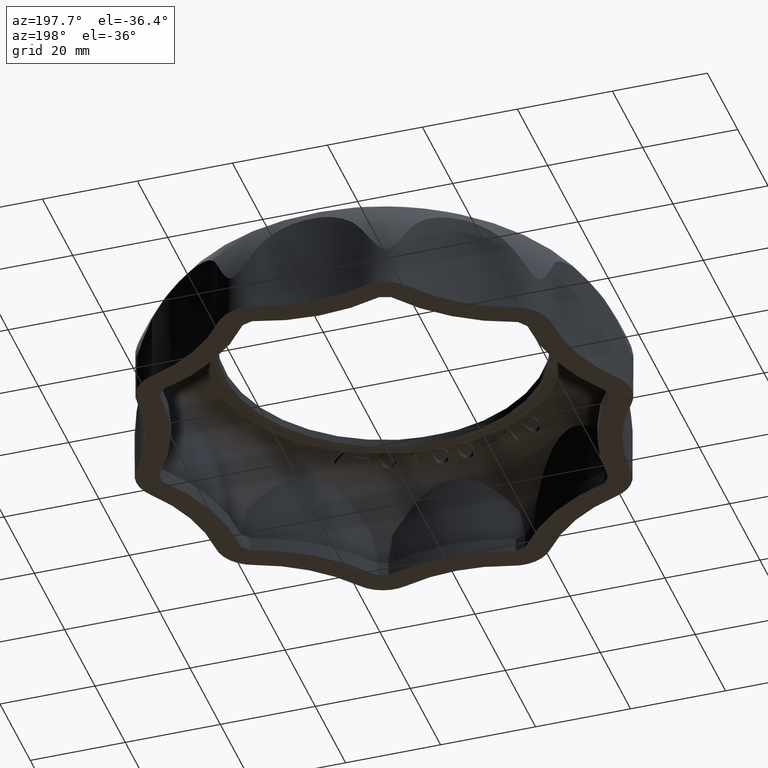
[diagram: clean part render]
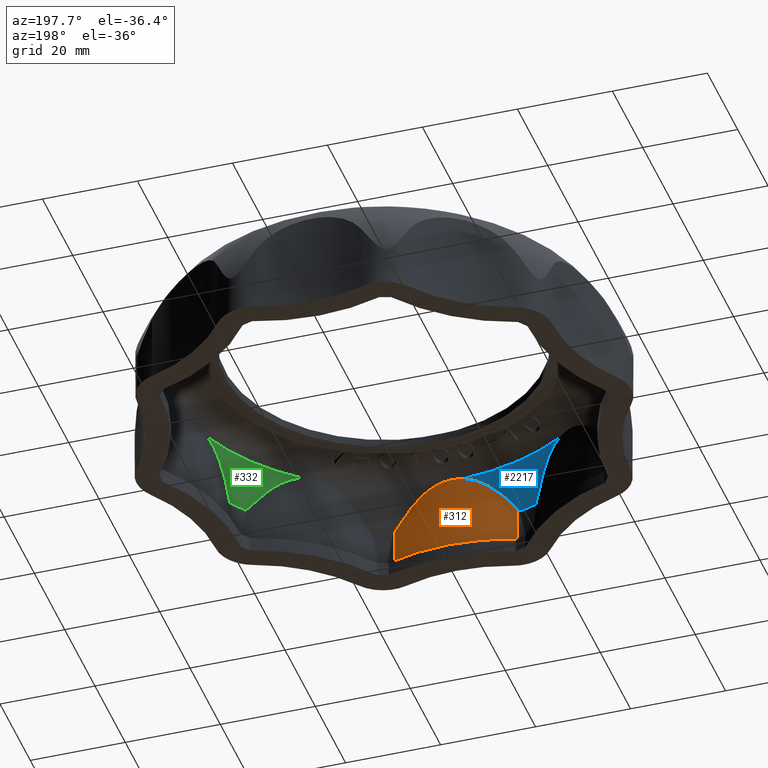
[diagram: same view with three faces highlighted in distinct colors, each labeled with its STEP entity id]
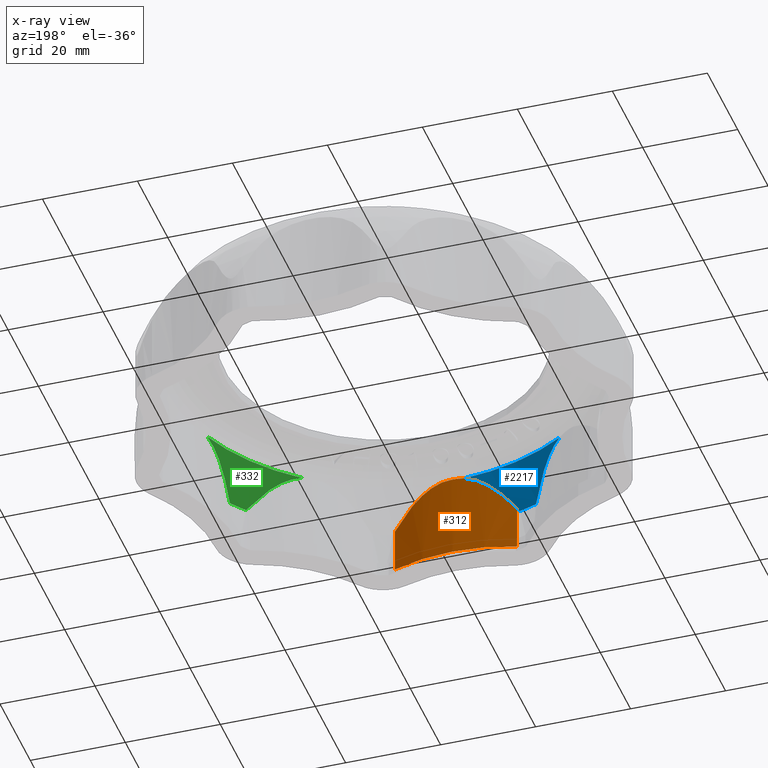
[diagram: x-ray of the same camera — body ghosted, the three highlighted faces saturated]
A machine part, auxiliary view with three faces highlighted in distinct colors.
The next image is the same camera in x-ray (body ghosted, the three faces saturated) — at least one of them is partly hidden behind the body in this view.
Their STEP definitions:

[orange] entity #312 — the highlighted cylindrical surface (partial cylindrical patch) has radius 38 mm, axis along (0, 0, -1).
#312 = ADVANCED_FACE( '', ( #2766 ), #2767, .T. );
#2766 = FACE_OUTER_BOUND( '', #7197, .T. );
#2767 = CYLINDRICAL_SURFACE( '', #7198, 38.0000000000000 );
#7197 = EDGE_LOOP( '', ( #16867, #16868, #16869, #16870, #16871, #16872 ) );
#7198 = AXIS2_PLACEMENT_3D( '', #16873, #16874, #16875 );
#16867 = ORIENTED_EDGE( '', *, *, #35007, .T. );
#16868 = ORIENTED_EDGE( '', *, *, #35008, .F. );
#16869 = ORIENTED_EDGE( '', *, *, #31560, .F. );
#16870 = ORIENTED_EDGE( '', *, *, #35009, .F. );
#16871 = ORIENTED_EDGE( '', *, *, #35010, .F. );
#16872 = ORIENTED_EDGE( '', *, *, #32480, .F. );
#16873 = CARTESIAN_POINT( '', ( 3.30260424563633E-006, -83.2682008088594, -142.941563697861 ) );
#16874 = DIRECTION( '', ( 0.000000000000000, 0.000000000000000, -1.00000000000000 ) );
#16875 = DIRECTION( '', ( 0.790354489271761, 0.612649803140402, 0.000000000000000 ) );
#31560 = EDGE_CURVE( '', #39047, #39049, #39050, .T. );
#32480 = EDGE_CURVE( '', #40885, #40887, #40888, .F. );
#35007 = EDGE_CURVE( '', #40885, #45714, #45715, .T. );
#35008 = EDGE_CURVE( '', #39049, #45714, #45716, .T. );
#35009 = EDGE_CURVE( '', #45717, #39047, #45718, .T. );
#35010 = EDGE_CURVE( '', #40887, #45717, #45719, .T. );
#39047 = VERTEX_POINT( '', #53690 );
#39049 = VERTEX_POINT( '', #53692 );
#39050 = B_SPLINE_CURVE_WITH_KNOTS( '', 3, ( #53693, #53694, #53695, #53696, #53697, #53698 ), .UNSPECIFIED., .F., .F., ( 4, 2, 4 ), ( 1.13321203803139E-006, 0.00234909977130705, 0.00469706633057607 ), .UNSPECIFIED. );
#40885 = VERTEX_POINT( '', #58372 );
#40887 = VERTEX_POINT( '', #58374 );
#40888 = CIRCLE( '', #58375, 38.0000000000000 );
#45714 = VERTEX_POINT( '', #70970 );
#45715 = LINE( '', #70971, #70972 );
#45716 = B_SPLINE_CURVE_WITH_KNOTS( '', 3, ( #70973, #70974, #70975, #70976, #70977, #70978, #70979, #70980, #70981, #70982, #70983, #70984 ), .UNSPECIFIED., .F., .F., ( 4, 2, 2, 2, 2, 4 ), ( 8.15083400922602E-007, 0.00344971060028494, 0.00517415835872695, 0.00689860611716896, 0.0103475016340530, 0.0137963971509370 ), .UNSPECIFIED. );
#45717 = VERTEX_POINT( '', #70985 );
#45718 = B_SPLINE_CURVE_WITH_KNOTS( '', 3, ( #70986, #70987, #70988, #70989, #70990, #70991, #70992, #70993, #70994, #70995, #70996, #70997 ), .UNSPECIFIED., .F., .F., ( 4, 2, 2, 2, 2, 4 ), ( 4.03809902751157E-007, 0.00345708544445287, 0.00691376707900300, 0.0103704487135531, 0.0120987895308282, 0.0138271303481033 ), .UNSPECIFIED. );
#45719 = LINE( '', #70998, #70999 );
#53690 = CARTESIAN_POINT( '', ( 2.34537602475781, -45.3406484650264, 20.7647700015187 ) );
#53692 = CARTESIAN_POINT( '', ( -2.34537242813354, -45.3406486510722, 20.7647700015187 ) );
#53693 = CARTESIAN_POINT( '', ( 2.34537602475780, -45.3406484650266, 20.7647700015187 ) );
#53694 = CARTESIAN_POINT( '', ( 1.56855960333164, -45.2926115121430, 20.9028625777991 ) );
#53695 = CARTESIAN_POINT( '', ( 0.788144006832646, -45.2682977745068, 20.9653730960380 ) );
#53696 = CARTESIAN_POINT( '', ( -0.778759156117320, -45.2681044218403, 20.9658905614924 ) );
#53697 = CARTESIAN_POINT( '', ( -1.56902643314827, -45.2926407267084, 20.9027789520270 ) );
#53698 = CARTESIAN_POINT( '', ( -2.34537242813358, -45.3406486510722, 20.7647700015190 ) );
#58372 = CARTESIAN_POINT( '', ( -12.8603992963025, -47.5105436569426, 2.99979606750061 ) );
#58374 = CARTESIAN_POINT( '', ( 12.8604023233813, -47.5105423700522, 2.99979606750060 ) );
#58375 = AXIS2_PLACEMENT_3D( '', #75570, #75571, #75572 );
#70970 = CARTESIAN_POINT( '', ( -12.8603992963027, -47.5105436569425, 12.4114893770233 ) );
#70971 = CARTESIAN_POINT( '', ( -12.8603992963025, -47.5105436569426, -142.941563697861 ) );
#70972 = VECTOR( '', #75817, 1000.00000000000 );
#70973 = CARTESIAN_POINT( '', ( -2.34537242813352, -45.3406486510723, 20.7647700015187 ) );
#70974 = CARTESIAN_POINT( '', ( -3.48269817896726, -45.4109789535092, 20.4826375951342 ) );
#70975 = CARTESIAN_POINT( '', ( -4.53043441482208, -45.5259739066591, 20.0224396015786 ) );
#70976 = CARTESIAN_POINT( '', ( -6.01493697476787, -45.7439335565624, 19.1595359882889 ) );
#70977 = CARTESIAN_POINT( '', ( -6.49719288384650, -45.8247879618319, 18.8406892852057 ) );
#70978 = CARTESIAN_POINT( '', ( -7.42509326367141, -45.9976941729193, 18.1625253214739 ) );
#70979 = CARTESIAN_POINT( '', ( -7.86940838689226, -46.0893689827862, 17.8046709754961 ) );
#70980 = CARTESIAN_POINT( '', ( -9.15613915932952, -46.3773108714014, 16.6870875889256 ) );
#70981 = CARTESIAN_POINT( '', ( -9.95299594350172, -46.5863496418657, 15.8839725905637 ) );
#70982 = CARTESIAN_POINT( '', ( -11.4644579316561, -47.0302852004996, 14.2001448453723 ) );
#70983 = CARTESIAN_POINT( '', ( -12.1797308759346, -47.2657381909382, 13.3173371682747 ) );
#70984 = CARTESIAN_POINT( '', ( -12.8603992963026, -47.5105436569424, 12.4114893770232 ) );
#70985 = CARTESIAN_POINT( '', ( 12.8604023233813, -47.5105423700522, 12.4114903640544 ) );
#70986 = CARTESIAN_POINT( '', ( 12.8604023233813, -47.5105423700523, 12.4114903640545 ) );
#70987 = CARTESIAN_POINT( '', ( 12.1809520196401, -47.2661750819690, 13.3157169837842 ) );
#70988 = CARTESIAN_POINT( '', ( 11.4697293898881, -47.0319657450621, 14.1938204523032 ) );
#70989 = CARTESIAN_POINT( '', ( 9.95962040438331, -46.5881602513294, 15.8770491625679 ) );
#70990 = CARTESIAN_POINT( '', ( 9.16070665210063, -46.3783067122606, 16.6832132169433 ) );
#70991 = CARTESIAN_POINT( '', ( 7.43391514303039, -45.9919385624308, 18.1828299487118 ) );
#70992 = CARTESIAN_POINT( '', ( 6.52129873759384, -45.8186452722993, 18.8637953123358 ) );
#70993 = CARTESIAN_POINT( '', ( 5.03988487017856, -45.6005924457857, 19.7270004625454 ) );
#70994 = CARTESIAN_POINT( '', ( 4.52422922225135, -45.5346767858860, 19.9891925123744 ) );
#70995 = CARTESIAN_POINT( '', ( 3.45786247003990, -45.4220561526002, 20.4384818559832 ) );
#70996 = CARTESIAN_POINT( '', ( 2.91024436163128, -45.3755789234148, 20.6246450968694 ) );
#70997 = CARTESIAN_POINT( '', ( 2.34537602475779, -45.3406484650266, 20.7647700015187 ) );
#70998 = CARTESIAN_POINT( '', ( 12.8604023233813, -47.5105423700522, -142.941563697861 ) );
#70999 = VECTOR( '', #75818, 1000.00000000000 );
#75570 = CARTESIAN_POINT( '', ( 3.30260424563633E-006, -83.2682008088594, 2.99979606750060 ) );
#75571 = DIRECTION( '', ( -3.93122838974283E-017, -7.71547013724937E-017, 1.00000000000000 ) );
#75572 = DIRECTION( '', ( 0.951056516295154, 0.309016994374947, 6.12303176911189E-017 ) );
#75817 = DIRECTION( '', ( 0.000000000000000, 0.000000000000000, 1.00000000000000 ) );
#75818 = DIRECTION( '', ( 0.000000000000000, 0.000000000000000, 1.00000000000000 ) );

[blue] entity #2217 — the highlighted conical surface has half-angle 24.57 deg.
#2217 = ADVANCED_FACE( '', ( #6576 ), #6577, .F. );
#6576 = FACE_OUTER_BOUND( '', #11007, .T. );
#6577 = CONICAL_SURFACE( '', #11008, 49.5000000000000, 0.428820245296812 );
#11007 = EDGE_LOOP( '', ( #30228, #30229, #30230, #30231, #30232, #30233 ) );
#11008 = AXIS2_PLACEMENT_3D( '', #30234, #30235, #30236 );
#30228 = ORIENTED_EDGE( '', *, *, #35024, .T. );
#30229 = ORIENTED_EDGE( '', *, *, #31561, .T. );
#30230 = ORIENTED_EDGE( '', *, *, #35008, .T. );
#30231 = ORIENTED_EDGE( '', *, *, #35017, .T. );
#30232 = ORIENTED_EDGE( '', *, *, #36909, .F. );
#30233 = ORIENTED_EDGE( '', *, *, #35015, .T. );
#30234 = CARTESIAN_POINT( '', ( 0.000000000000000, 0.000000000000000, 11.7997960675006 ) );
#30235 = DIRECTION( '', ( 3.93122838974283E-017, 7.71547013724938E-017, -1.00000000000000 ) );
#30236 = DIRECTION( '', ( -0.951056516295154, -0.309016994374947, -6.12303176911189E-017 ) );
#31561 = EDGE_CURVE( '', #39051, #39049, #39052, .T. );
#35008 = EDGE_CURVE( '', #39049, #45714, #45716, .T. );
#35015 = EDGE_CURVE( '', #45727, #45725, #45728, .T. );
#35017 = EDGE_CURVE( '', #45714, #45729, #45731, .T. );
#35024 = EDGE_CURVE( '', #45725, #39051, #45742, .T. );
#36909 = EDGE_CURVE( '', #45727, #45729, #47645, .T. );
#39049 = VERTEX_POINT( '', #53692 );
#39051 = VERTEX_POINT( '', #53699 );
#39052 = CIRCLE( '', #53700, 45.4012686158287 );
#45714 = VERTEX_POINT( '', #70970 );
#45716 = B_SPLINE_CURVE_WITH_KNOTS( '', 3, ( #70973, #70974, #70975, #70976, #70977, #70978, #70979, #70980, #70981, #70982, #70983, #70984 ), .UNSPECIFIED., .F., .F., ( 4, 2, 2, 2, 2, 4 ), ( 8.15083400922602E-007, 0.00344971060028494, 0.00517415835872695, 0.00689860611716896, 0.0103475016340530, 0.0137963971509370 ), .UNSPECIFIED. );
#45725 = VERTEX_POINT( '', #71042 );
#45727 = VERTEX_POINT( '', #71045 );
#45728 = B_SPLINE_CURVE_WITH_KNOTS( '', 3, ( #71046, #71047, #71048, #71049 ), .UNSPECIFIED., .F., .F., ( 4, 4 ), ( 2.79569420598729E-007, 0.000814694314409359 ), .UNSPECIFIED. );
#45729 = VERTEX_POINT( '', #71050 );
#45731 = B_SPLINE_CURVE_WITH_KNOTS( '', 3, ( #71083, #71084, #71085, #71086 ), .UNSPECIFIED., .F., .F., ( 4, 4 ), ( 3.20018793798306E-007, 0.000814735017236394 ), .UNSPECIFIED. );
#45742 = B_SPLINE_CURVE_WITH_KNOTS( '', 3, ( #71147, #71148, #71149, #71150, #71151, #71152, #71153, #71154, #71155, #71156, #71157, #71158 ), .UNSPECIFIED., .F., .F., ( 4, 2, 2, 2, 2, 4 ), ( 3.32379371393806E-007, 0.00345701521000812, 0.00691369804064485, 0.0103703808712816, 0.0120987222865999, 0.0138270637019183 ), .UNSPECIFIED. );
#47645 = CIRCLE( '', #75173, 49.5000000000000 );
#53692 = CARTESIAN_POINT( '', ( -2.34537242813354, -45.3406486510722, 20.7647700015187 ) );
#53699 = CARTESIAN_POINT( '', ( -24.7531226614810, -38.0599278826472, 20.7647700015187 ) );
#53700 = AXIS2_PLACEMENT_3D( '', #75444, #75445, #75446 );
#70970 = CARTESIAN_POINT( '', ( -12.8603992963027, -47.5105436569425, 12.4114893770233 ) );
#70973 = CARTESIAN_POINT( '', ( -2.34537242813352, -45.3406486510723, 20.7647700015187 ) );
#70974 = CARTESIAN_POINT( '', ( -3.48269817896726, -45.4109789535092, 20.4826375951342 ) );
#70975 = CARTESIAN_POINT( '', ( -4.53043441482208, -45.5259739066591, 20.0224396015786 ) );
#70976 = CARTESIAN_POINT( '', ( -6.01493697476787, -45.7439335565624, 19.1595359882889 ) );
#70977 = CARTESIAN_POINT( '', ( -6.49719288384650, -45.8247879618319, 18.8406892852057 ) );
#70978 = CARTESIAN_POINT( '', ( -7.42509326367141, -45.9976941729193, 18.1625253214739 ) );
#70979 = CARTESIAN_POINT( '', ( -7.86940838689226, -46.0893689827862, 17.8046709754961 ) );
#70980 = CARTESIAN_POINT( '', ( -9.15613915932952, -46.3773108714014, 16.6870875889256 ) );
#70981 = CARTESIAN_POINT( '', ( -9.95299594350172, -46.5863496418657, 15.8839725905637 ) );
#70982 = CARTESIAN_POINT( '', ( -11.4644579316561, -47.0302852004996, 14.2001448453723 ) );
#70983 = CARTESIAN_POINT( '', ( -12.1797308759346, -47.2657381909382, 13.3173371682747 ) );
#70984 = CARTESIAN_POINT( '', ( -12.8603992963026, -47.5105436569424, 12.4114893770232 ) );
#71042 = CARTESIAN_POINT( '', ( -17.5217161349108, -45.9959900562888, 12.4114891785619 ) );
#71045 = CARTESIAN_POINT( '', ( -17.1901501559974, -46.4192711878835, 11.7997960675006 ) );
#71046 = CARTESIAN_POINT( '', ( -17.1901501559973, -46.4192711878835, 11.7997960675006 ) );
#71047 = CARTESIAN_POINT( '', ( -17.3175568692114, -46.2774046540900, 11.9940067318218 ) );
#71048 = CARTESIAN_POINT( '', ( -17.4262595118962, -46.1363519076129, 12.1989189496223 ) );
#71049 = CARTESIAN_POINT( '', ( -17.5217161349109, -45.9959900562888, 12.4114891785618 ) );
#71050 = CARTESIAN_POINT( '', ( -13.3774403668007, -47.6580957365345, 11.7997960675006 ) );
#71083 = CARTESIAN_POINT( '', ( -12.8603992963023, -47.5105436569425, 12.4114893770229 ) );
#71084 = CARTESIAN_POINT( '', ( -13.0201280068705, -47.5679908077943, 12.1989190632871 ) );
#71085 = CARTESIAN_POINT( '', ( -13.1909790689569, -47.6182110810404, 11.9940067781726 ) );
#71086 = CARTESIAN_POINT( '', ( -13.3774403668006, -47.6580957365346, 11.7997960675006 ) );
#71147 = CARTESIAN_POINT( '', ( -17.5217161349109, -45.9959900562888, 12.4114891785618 ) );
#71148 = CARTESIAN_POINT( '', ( -17.9277676499301, -45.3989215598230, 13.3157162587048 ) );
#71149 = CARTESIAN_POINT( '', ( -18.3654942165714, -44.7913957392714, 14.1938201006498 ) );
#71150 = CARTESIAN_POINT( '', ( -19.3263360446922, -43.5447292100277, 15.8770493398103 ) );
#71151 = CARTESIAN_POINT( '', ( -19.8493219143040, -42.9053644785490, 16.6832132026056 ) );
#71152 = CARTESIAN_POINT( '', ( -21.0192248961052, -41.5778024983952, 18.1828307062956 ) );
#71153 = CARTESIAN_POINT( '', ( -21.6556882196209, -40.9011824118811, 18.8637962011111 ) );
#71154 = CARTESIAN_POINT( '', ( -22.7260093705927, -39.8540203821010, 19.7270011435838 ) );
#71155 = CARTESIAN_POINT( '', ( -23.1044393026950, -39.4975987116416, 19.9891930139558 ) );
#71156 = CARTESIAN_POINT( '', ( -23.9009519612828, -38.7796915660638, 20.4384822350822 ) );
#71157 = CARTESIAN_POINT( '', ( -24.3166659566380, -38.4202086471887, 20.6246453244724 ) );
#71158 = CARTESIAN_POINT( '', ( -24.7531226614810, -38.0599278826472, 20.7647700015186 ) );
#75173 = AXIS2_PLACEMENT_3D( '', #77702, #77703, #77704 );
#75444 = CARTESIAN_POINT( '', ( 0.000000000000000, 0.000000000000000, 20.7647700015187 ) );
#75445 = DIRECTION( '', ( -3.93122838974283E-017, -7.71547013724938E-017, 1.00000000000000 ) );
#75446 = DIRECTION( '', ( 0.951056516295154, 0.309016994374947, 6.12303176911189E-017 ) );
#77702 = CARTESIAN_POINT( '', ( 0.000000000000000, 0.000000000000000, 11.7997960675006 ) );
#77703 = DIRECTION( '', ( -3.93122838974283E-017, -7.71547013724938E-017, 1.00000000000000 ) );
#77704 = DIRECTION( '', ( 0.951056516295154, 0.309016994374947, 6.12303176911189E-017 ) );

[green] entity #332 — the highlighted conical surface has half-angle 24.57 deg.
#332 = ADVANCED_FACE( '', ( #2806 ), #2807, .F. );
#2806 = FACE_OUTER_BOUND( '', #7237, .T. );
#2807 = CONICAL_SURFACE( '', #7238, 49.5000000000000, 0.428820245296812 );
#7237 = EDGE_LOOP( '', ( #17033, #17034, #17035, #17036, #17037, #17038 ) );
#7238 = AXIS2_PLACEMENT_3D( '', #17039, #17040, #17041 );
#17033 = ORIENTED_EDGE( '', *, *, #35002, .T. );
#17034 = ORIENTED_EDGE( '', *, *, #31557, .T. );
#17035 = ORIENTED_EDGE( '', *, *, #34998, .T. );
#17036 = ORIENTED_EDGE( '', *, *, #35006, .T. );
#17037 = ORIENTED_EDGE( '', *, *, #35027, .F. );
#17038 = ORIENTED_EDGE( '', *, *, #35004, .T. );
#17039 = CARTESIAN_POINT( '', ( 0.000000000000000, 0.000000000000000, 11.7997960675006 ) );
#17040 = DIRECTION( '', ( 3.93122838974283E-017, 7.71547013724938E-017, -1.00000000000000 ) );
#17041 = DIRECTION( '', ( -0.951056516295154, -0.309016994374947, -6.12303176911189E-017 ) );
#31557 = EDGE_CURVE( '', #39043, #39041, #39044, .T. );
#34998 = EDGE_CURVE( '', #39041, #45699, #45701, .T. );
#35002 = EDGE_CURVE( '', #45706, #39043, #45707, .T. );
#35004 = EDGE_CURVE( '', #45709, #45706, #45710, .T. );
#35006 = EDGE_CURVE( '', #45699, #45711, #45713, .T. );
#35027 = EDGE_CURVE( '', #45709, #45711, #45747, .T. );
#39041 = VERTEX_POINT( '', #53674 );
#39043 = VERTEX_POINT( '', #53681 );
#39044 = CIRCLE( '', #53682, 45.4012686158287 );
#45699 = VERTEX_POINT( '', #70881 );
#45701 = B_SPLINE_CURVE_WITH_KNOTS( '', 3, ( #70884, #70885, #70886, #70887, #70888, #70889, #70890, #70891, #70892, #70893, #70894, #70895 ), .UNSPECIFIED., .F., .F., ( 4, 2, 2, 2, 2, 4 ), ( 8.15082493168947E-007, 0.00344970915159694, 0.00517415618614883, 0.00689860322070072, 0.0103474972898045, 0.0137963913589083 ), .UNSPECIFIED. );
#45706 = VERTEX_POINT( '', #70913 );
#45707 = B_SPLINE_CURVE_WITH_KNOTS( '', 3, ( #70914, #70915, #70916, #70917, #70918, #70919, #70920, #70921, #70922, #70923, #70924, #70925 ), .UNSPECIFIED., .F., .F., ( 4, 2, 2, 2, 2, 4 ), ( 3.19306126142671E-007, 0.00345700006562824, 0.00691368082513035, 0.0103703615846324, 0.0120987019643835, 0.0138270423441345 ), .UNSPECIFIED. );
#45709 = VERTEX_POINT( '', #70928 );
#45710 = B_SPLINE_CURVE_WITH_KNOTS( '', 3, ( #70929, #70930, #70931, #70932 ), .UNSPECIFIED., .F., .F., ( 4, 4 ), ( 2.79569635767407E-007, 0.000814698740505843 ), .UNSPECIFIED. );
#45711 = VERTEX_POINT( '', #70933 );
#45713 = B_SPLINE_CURVE_WITH_KNOTS( '', 3, ( #70966, #70967, #70968, #70969 ), .UNSPECIFIED., .F., .F., ( 4, 4 ), ( 3.33118893484521E-007, 0.000814752388437229 ), .UNSPECIFIED. );
#45747 = CIRCLE( '', #71194, 49.5000000000000 );
#53674 = CARTESIAN_POINT( '', ( 42.3967600021562, -16.2416111653431, 20.7647700015187 ) );
#53681 = CARTESIAN_POINT( '', ( 28.5480167799217, -35.3027751013988, 20.7647700015187 ) );
#53682 = AXIS2_PLACEMENT_3D( '', #75438, #75439, #75440 );
#70881 = CARTESIAN_POINT( '', ( 41.2111324644030, -26.9125259640831, 12.4114923959788 ) );
#70884 = CARTESIAN_POINT( '', ( 42.3967600021562, -16.2416111653431, 20.7647700015187 ) );
#70885 = CARTESIAN_POINT( '', ( 42.1121954346164, -17.3450050081460, 20.4826373980068 ) );
#70886 = CARTESIAN_POINT( '', ( 41.8977940889576, -18.3769963056143, 20.0224394211206 ) );
#70887 = CARTESIAN_POINT( '', ( 41.6463498307922, -19.8561946788426, 19.1595360463188 ) );
#70888 = CARTESIAN_POINT( '', ( 41.5742217633213, -20.3398324443445, 18.8406894709986 ) );
#70889 = CARTESIAN_POINT( '', ( 41.4519285094722, -21.2757487395793, 18.1625257311029 ) );
#70890 = CARTESIAN_POINT( '', ( 41.4018155777341, -21.7266464309635, 17.8046715179445 ) );
#70891 = CARTESIAN_POINT( '', ( 41.2780430883268, -23.0393785397790, 16.6870885778432 ) );
#70892 = CARTESIAN_POINT( '', ( 41.2306085714783, -23.8618305853820, 15.8839739403784 ) );
#70893 = CARTESIAN_POINT( '', ( 41.1857490661403, -25.4364993638638, 14.2001469991949 ) );
#70894 = CARTESIAN_POINT( '', ( 41.1886467134826, -26.1895230365997, 13.3173397621809 ) );
#70895 = CARTESIAN_POINT( '', ( 41.2111324644031, -26.9125259640831, 12.4114923959789 ) );
#70913 = CARTESIAN_POINT( '', ( 38.3302810089788, -30.8776788961893, 12.4114923187134 ) );
#70914 = CARTESIAN_POINT( '', ( 38.3302810089788, -30.8776788961892, 12.4114923187134 ) );
#70915 = CARTESIAN_POINT( '', ( 37.6369587007812, -31.0793525512008, 13.3157188607652 ) );
#70916 = CARTESIAN_POINT( '', ( 36.9239027896813, -31.3079194541065, 14.1938221739447 ) );
#70917 = CARTESIAN_POINT( '', ( 35.4413369724622, -31.8364931112316, 15.8770504030550 ) );
#70918 = CARTESIAN_POINT( '', ( 34.6716541170359, -32.1363075265499, 16.6832136664667 ) );
#70919 = CARTESIAN_POINT( '', ( 33.0475487431738, -32.8387119548447, 18.1828305712721 ) );
#70920 = CARTESIAN_POINT( '', ( 32.2073674019539, -33.2349372691647, 18.8637958020457 ) );
#70921 = CARTESIAN_POINT( '', ( 30.8807108275235, -33.9292818314357, 19.7270005552782 ) );
#70922 = CARTESIAN_POINT( '', ( 30.4247928794618, -34.1790494917557, 19.9891923729169 ) );
#70923 = CARTESIAN_POINT( '', ( 29.4958872752264, -34.7147322214220, 20.4384818239676 ) );
#70924 = CARTESIAN_POINT( '', ( 29.0255363384171, -34.9990132094124, 20.6246450813301 ) );
#70925 = CARTESIAN_POINT( '', ( 28.5480167799217, -35.3027751013987, 20.7647700015188 ) );
#70928 = CARTESIAN_POINT( '', ( 38.8353076434060, -30.6931406057121, 11.7997960675006 ) );
#70929 = CARTESIAN_POINT( '', ( 38.8353076434060, -30.6931406057122, 11.7997960675005 ) );
#70930 = CARTESIAN_POINT( '', ( 38.6610127149600, -30.7704730664926, 11.9940076377058 ) );
#70931 = CARTESIAN_POINT( '', ( 38.4932716808123, -30.8302681549904, 12.1989209217799 ) );
#70932 = CARTESIAN_POINT( '', ( 38.3302810089788, -30.8776788961894, 12.4114923187133 ) );
#70933 = CARTESIAN_POINT( '', ( 41.1916880653472, -27.4498603699026, 11.7997960675006 ) );
#70966 = CARTESIAN_POINT( '', ( 41.2111324644031, -26.9125259640830, 12.4114923959787 ) );
#70967 = CARTESIAN_POINT( '', ( 41.2164091014682, -27.0821900352914, 12.1989209855444 ) );
#70968 = CARTESIAN_POINT( '', ( 41.2113754691229, -27.2601989559688, 11.9940076757123 ) );
#70969 = CARTESIAN_POINT( '', ( 41.1916880653468, -27.4498603699028, 11.7997960675008 ) );
#71194 = AXIS2_PLACEMENT_3D( '', #75825, #75826, #75827 );
#75438 = CARTESIAN_POINT( '', ( 0.000000000000000, 0.000000000000000, 20.7647700015187 ) );
#75439 = DIRECTION( '', ( -3.93122838974283E-017, -7.71547013724938E-017, 1.00000000000000 ) );
#75440 = DIRECTION( '', ( 0.951056516295154, 0.309016994374947, 6.12303176911189E-017 ) );
#75825 = CARTESIAN_POINT( '', ( 0.000000000000000, 0.000000000000000, 11.7997960675006 ) );
#75826 = DIRECTION( '', ( -3.93122838974283E-017, -7.71547013724938E-017, 1.00000000000000 ) );
#75827 = DIRECTION( '', ( 0.951056516295154, 0.309016994374947, 6.12303176911189E-017 ) );